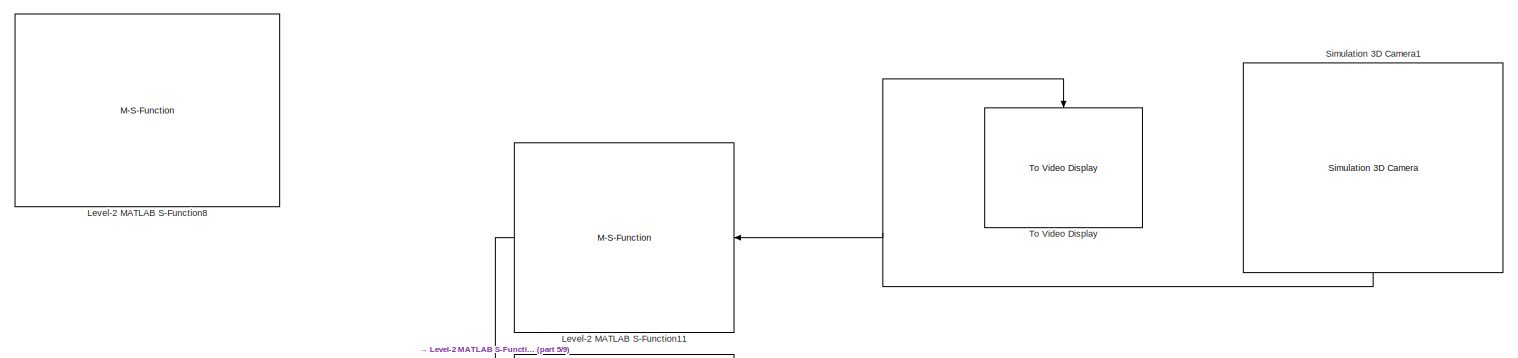
[diagram: root canvas - part 1/9, top center region]
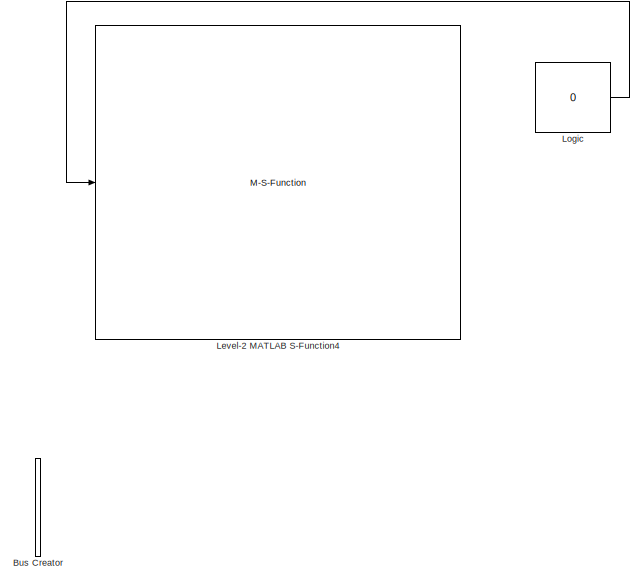
[diagram: root canvas - part 2/9, top left region]
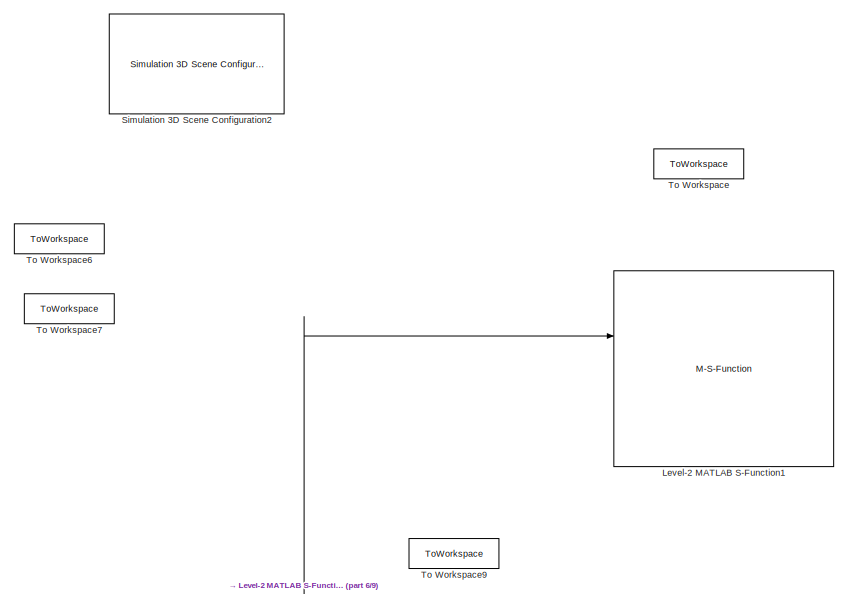
[diagram: root canvas - part 3/9, top center region]
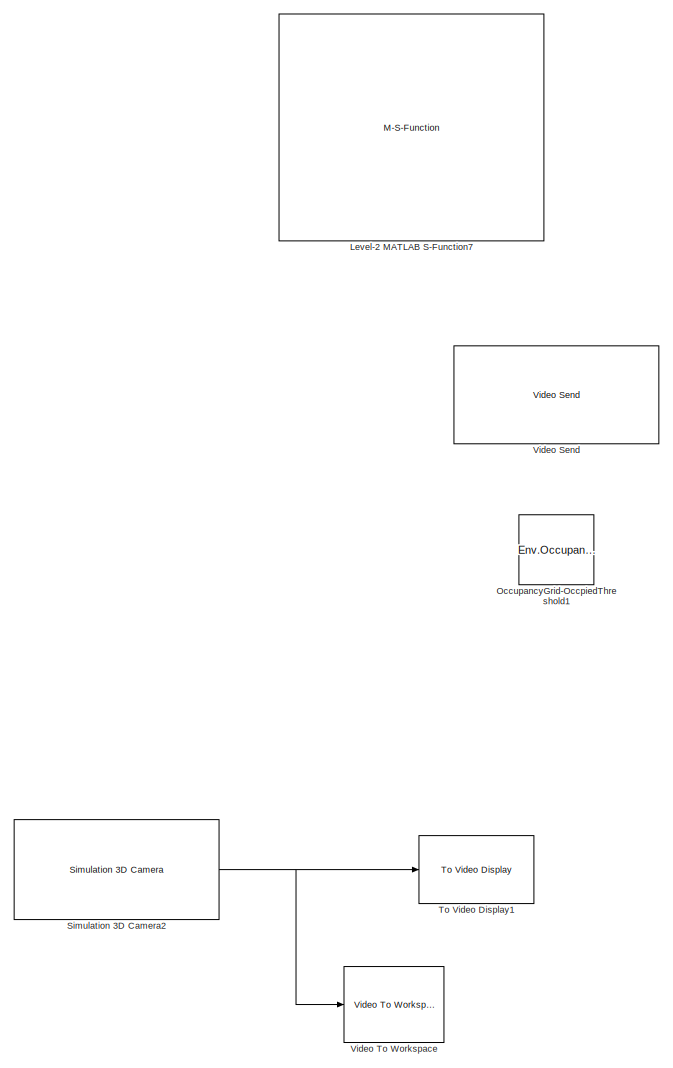
[diagram: root canvas - part 4/9, middle right region]
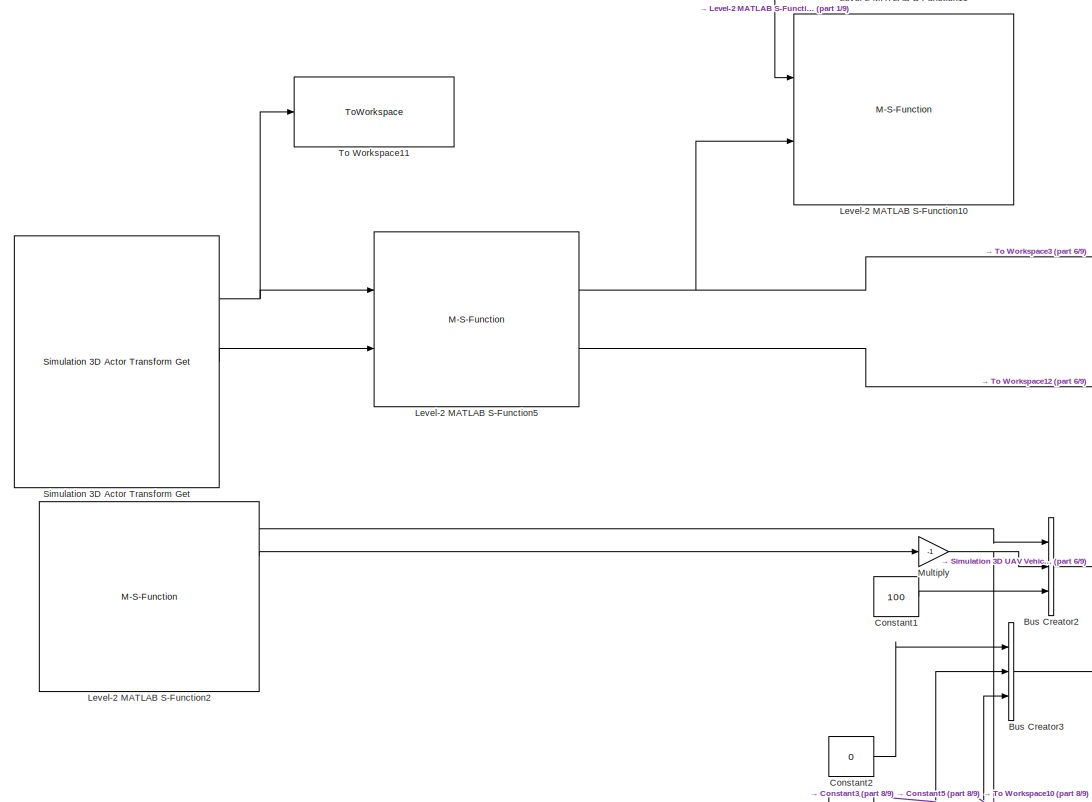
[diagram: root canvas - part 5/9, middle left region]
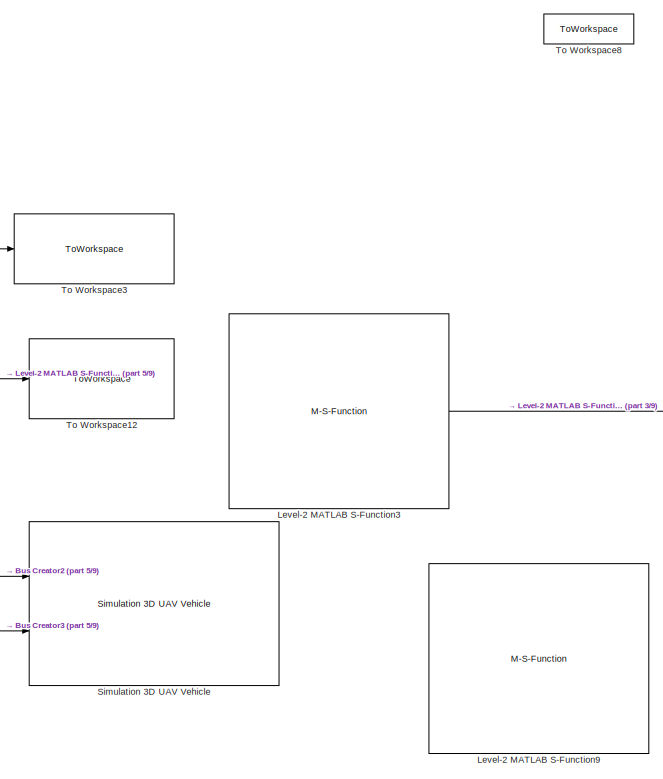
[diagram: root canvas - part 6/9, central region]
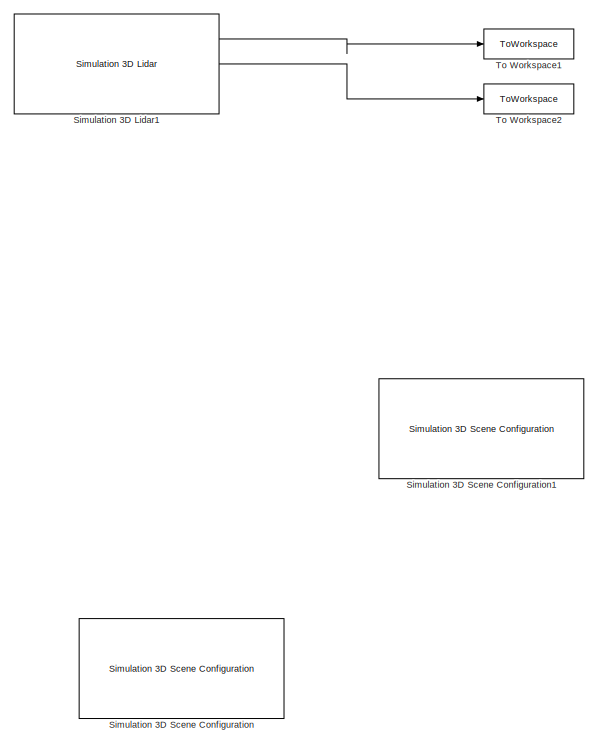
[diagram: root canvas - part 7/9, middle right region]
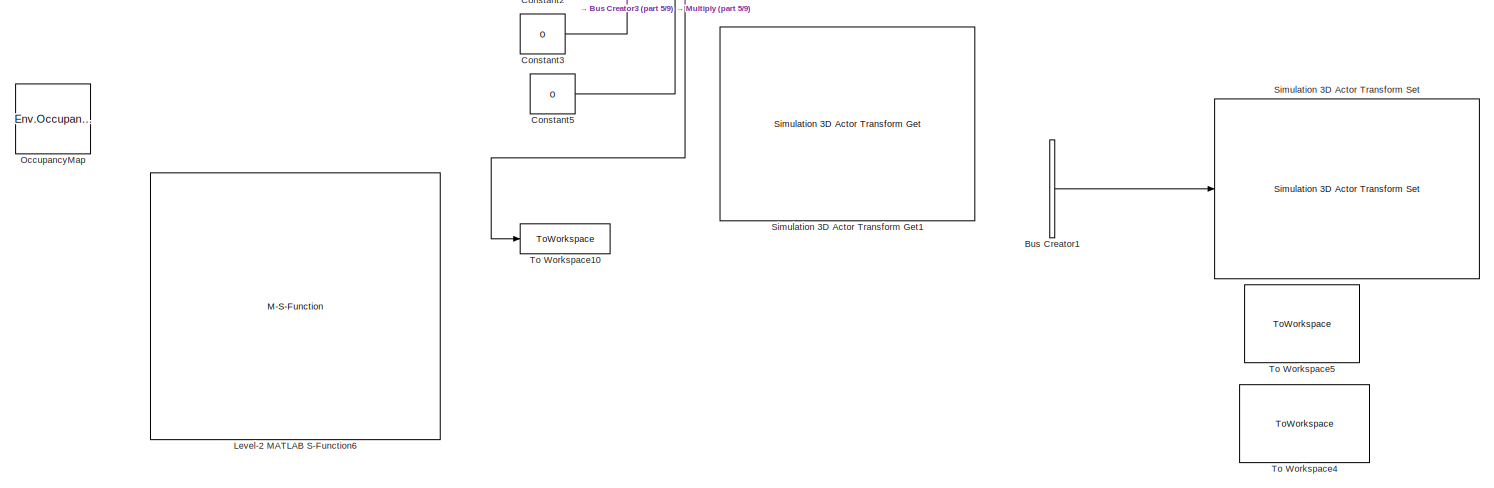
[diagram: root canvas - part 8/9, bottom center region]
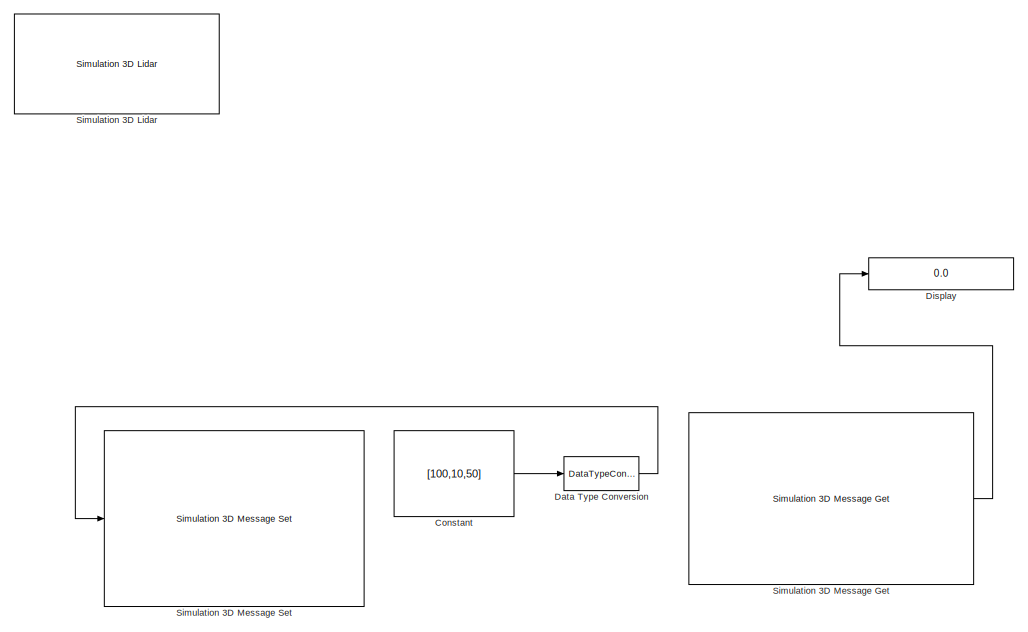
[diagram: root canvas - part 9/9, bottom right region]
MODEL slx_9650f5c3fcde
KIND model
CONFIG AbsTol = auto
CONFIG EnableMultiTasking = off
CONFIG FixedStep = auto
CONFIG MaxStep = auto
CONFIG MinStep = auto
CONFIG RelTol = 1e-3
CONFIG SampleTimeConstraint = Unconstrained
CONFIG SolverName = VariableStepAuto
CONFIG StartTime = 0.0
CONFIG StopTime = 10
BLOCK [BusCreator] Bus Creator
  Commented = on
  DisplayOption = bar
  InheritFromInputs = on
  Inputs = 3
  Ports = [3, 1]
BLOCK [BusCreator] Bus Creator1
  Commented = on
  DisplayOption = bar
  InheritFromInputs = on
  Inputs = 3
  Ports = [3, 1]
BLOCK [BusCreator] Bus Creator2
  DisplayOption = bar
  InheritFromInputs = on
  Inputs = 3
  Ports = [3, 1]
BLOCK [BusCreator] Bus Creator3
  DisplayOption = bar
  InheritFromInputs = on
  Inputs = 3
  Ports = [3, 1]
BLOCK [Constant] Constant
  Commented = on
  OutDataTypeStr = single
  Value = [100,10,50]
  VectorParams1D = off
BLOCK [Constant] Constant1
  Value = 100
BLOCK [Constant] Constant2
  Value = 0
BLOCK [Constant] Constant3
  Value = 0
BLOCK [Constant] Constant5
  Value = 0
BLOCK [DataTypeConversion] Data Type Conversion
  Commented = on
  OutDataTypeStr = single
  RndMeth = Floor
  SaturateOnIntegerOverflow = off
BLOCK [Display] Display
  Commented = on
  Decimation = 1
  Ports = [1]
BLOCK [M-S-Function] Level-2 MATLAB S-Function1
  Commented = on
  FunctionName = HazardMapDisplay
  Ports = [2]
  Priority = 1
BLOCK [M-S-Function] Level-2 MATLAB S-Function10
  FunctionName = ImageProcessingSubsystem
  Ports = [2, 1]
  Priority = 1
BLOCK [M-S-Function] Level-2 MATLAB S-Function11
  FunctionName = RGBToGray
  Ports = [1, 1]
  Priority = 1
BLOCK [M-S-Function] Level-2 MATLAB S-Function2
  FunctionName = PathPlanSubsystem
  Ports = [3, 6]
  Priority = 1
BLOCK [M-S-Function] Level-2 MATLAB S-Function3
  Commented = on
  FunctionName = UnrealToWorldTransform
  Ports = [2, 1]
  Priority = 1
BLOCK [M-S-Function] Level-2 MATLAB S-Function4
  Commented = on
  FunctionName = EnvConstants
  Ports = [1, 7]
  Priority = 1
BLOCK [M-S-Function] Level-2 MATLAB S-Function5
  FunctionName = CameraToWorldTransform
  Ports = [2, 2]
  Priority = 1
BLOCK [M-S-Function] Level-2 MATLAB S-Function6
  FunctionName = SimulationControl
  Ports = []
  Priority = 1
BLOCK [M-S-Function] Level-2 MATLAB S-Function7
  Commented = on
  FunctionName = DronePathPlanSubsystem
  Ports = [3, 6]
  Priority = 1
BLOCK [M-S-Function] Level-2 MATLAB S-Function8
  Commented = on
  FunctionName = SimulationControl
  Ports = []
  Priority = 1
BLOCK [M-S-Function] Level-2 MATLAB S-Function9
  Commented = on
  FunctionName = ImageProcessingSubsystem
  Ports = [3, 6]
  Priority = 1
BLOCK [Constant] Logic
  Commented = on
  OutDataTypeStr = double
  Value = 0
BLOCK [Gain] Multiply
  Gain = -1
BLOCK [Constant] OccupancyGrid-OccpiedThreshold1
  Commented = on
  Value = Env.OccupancyGrid.OccupiedThreshold
BLOCK [Constant] OccupancyMap
  Commented = on
  Value = Env.OccupancyMap
BLOCK [Reference] Simulation 3D Actor Transform Get  REF=sim3dlib/Simulation 3D Actor Transform Get
  Ports = [0, 3]
  Priority = 0
  SourceBlock = sim3dlib/Simulation 3D Actor Transform Get
  SourceProductBaseCode = VE,AE,DR,UV,VE
  SourceType = Simulation 3D Actor Transform Get
BLOCK [Reference] Simulation 3D Actor Transform Get1  REF=sim3dlib/Simulation 3D Actor Transform Get
  Commented = on
  Ports = [0, 3]
  Priority = 0
  SourceBlock = sim3dlib/Simulation 3D Actor Transform Get
  SourceProductBaseCode = VE,AE,DR,UV,VE
  SourceType = Simulation 3D Actor Transform Get
BLOCK [Reference] Simulation 3D Actor Transform Set  REF=sim3dlib/Simulation 3D Actor Transform Set
  Commented = on
  Ports = [3]
  Priority = 2
  SourceBlock = sim3dlib/Simulation 3D Actor Transform Set
  SourceProductBaseCode = VE,AE,DR,UV,VE
  SourceType = Simulation 3D Actor Transform Set
BLOCK [Reference] Simulation 3D Camera1  REF=sim3dcameralib/Simulation 3D Camera
  NameLocation = left
  Ports = [0, 1]
  Priority = 1
  SourceBlock = sim3dcameralib/Simulation 3D Camera
  SourceProductBaseCode = VE,AE,DR,UV,VE
  SourceType = Simulation 3D Camera
BLOCK [Reference] Simulation 3D Camera2  REF=sim3dcameralib/Simulation 3D Camera
  Commented = on
  Ports = [0, 1]
  Priority = 1
  SourceBlock = sim3dcameralib/Simulation 3D Camera
  SourceProductBaseCode = VE,AE,DR,UV,VE
  SourceType = Simulation 3D Camera
BLOCK [Reference] Simulation 3D Lidar  REF=sim3dphyssensorlib/Simulation 3D Lidar
  Commented = on
  Ports = [0, 1]
  Priority = 1
  SourceBlock = sim3dphyssensorlib/Simulation 3D Lidar
  SourceProductBaseCode = VE,AE,DR,UV,VE
  SourceType = Simulation 3D Lidar
BLOCK [Reference] Simulation 3D Lidar1  REF=sim3dphyssensorlib/Simulation 3D Lidar
  Commented = on
  Ports = [0, 3]
  Priority = 1
  SourceBlock = sim3dphyssensorlib/Simulation 3D Lidar
  SourceProductBaseCode = VE,AE,DR,UV,VE
  SourceType = Simulation 3D Lidar
BLOCK [Reference] Simulation 3D Message Get  REF=sim3dlib/Simulation 3D Message Get
  Commented = on
  Ports = [0, 1]
  Priority = 1
  SourceBlock = sim3dlib/Simulation 3D Message Get
  SourceProductBaseCode = VE,AE,DR,UV,VE
  SourceType = Simulation 3D Message Get
BLOCK [Reference] Simulation 3D Message Set  REF=sim3dlib/Simulation 3D Message Set
  Commented = on
  Ports = [1]
  Priority = -1
  SourceBlock = sim3dlib/Simulation 3D Message Set
  SourceProductBaseCode = VE,AE,DR,UV,VE
  SourceType = Simulation 3D Message Set
BLOCK [Reference] Simulation 3D Scene Configuration  REF=sim3dlib/Simulation 3D Scene Configuration
  Commented = on
  Ports = []
  Priority = 0
  SourceBlock = sim3dlib/Simulation 3D Scene Configuration
  SourceProductBaseCode = VE,AE,DR,UV,VE
  SourceType = Simulation 3D Scene Configuration
BLOCK [Reference] Simulation 3D Scene Configuration1  REF=sim3dlib/Simulation 3D Scene Configuration
  Commented = on
  Ports = []
  Priority = 0
  SourceBlock = sim3dlib/Simulation 3D Scene Configuration
  SourceProductBaseCode = VE,AE,DR,UV,VE
  SourceType = Simulation 3D Scene Configuration
BLOCK [Reference] Simulation 3D Scene Configuration2  REF=sim3dlib/Simulation 3D Scene Configuration
  Ports = []
  Priority = 1
  SourceBlock = sim3dlib/Simulation 3D Scene Configuration
  SourceProductBaseCode = VE,AE,DR,UV,VE
  SourceType = Simulation 3D Scene Configuration
BLOCK [Reference] Simulation 3D UAV Vehicle  REF=uavsim3dlib/Simulation 3D UAV Vehicle
  Ports = [2]
  Priority = 2
  SourceBlock = uavsim3dlib/Simulation 3D UAV Vehicle
  SourceProductBaseCode = UV
  SourceType = Simulation 3D UAV Vehicle
BLOCK [Reference] To Video Display  REF=visionsinks/To Video Display
  NameLocation = left
  Ports = [1]
  SourceBlock = visionsinks/To Video Display
  SourceProductBaseCode = VP
  SourceType = To Video Display
BLOCK [Reference] To Video Display1  REF=visionsinks/To Video Display
  Commented = on
  Ports = [1]
  SourceBlock = visionsinks/To Video Display
  SourceProductBaseCode = VP
  SourceType = To Video Display
BLOCK [ToWorkspace] To Workspace
  Commented = on
  FixptAsFi = on
  MaxDataPoints = inf
  Ports = [1]
  SampleTime = -1
  VariableName = state
BLOCK [ToWorkspace] To Workspace1
  Commented = on
  FixptAsFi = on
  MaxDataPoints = inf
  Ports = [1]
  SampleTime = -1
  SaveFormat = Timeseries
  VariableName = pCloud
BLOCK [ToWorkspace] To Workspace10
  FixptAsFi = on
  MaxDataPoints = inf
  Ports = [1]
  SampleTime = -1
  SaveFormat = Timeseries
  VariableName = Y
BLOCK [ToWorkspace] To Workspace11
  FixptAsFi = on
  MaxDataPoints = inf
  Ports = [1]
  SampleTime = -1
  SaveFormat = Timeseries
  VariableName = Translation
BLOCK [ToWorkspace] To Workspace12
  FixptAsFi = on
  MaxDataPoints = inf
  Ports = [1]
  SampleTime = -1
  SaveFormat = Timeseries
  VariableName = WorldCoordinates
BLOCK [ToWorkspace] To Workspace2
  Commented = on
  FixptAsFi = on
  MaxDataPoints = inf
  Ports = [1]
  SampleTime = -1
  SaveFormat = Timeseries
  VariableName = Location
BLOCK [ToWorkspace] To Workspace3
  FixptAsFi = on
  MaxDataPoints = inf
  Ports = [1]
  SampleTime = -1
  SaveFormat = Timeseries
  VariableName = UnrealCoordinates
BLOCK [ToWorkspace] To Workspace4
  Commented = on
  MaxDataPoints = inf
  Ports = [1]
  SampleTime = -1
  Save2DSignal = 2-D array (concatenate along first dimension)
  VariableName = Translation
BLOCK [ToWorkspace] To Workspace5
  Commented = on
  MaxDataPoints = inf
  Ports = [1]
  SampleTime = -1
  Save2DSignal = 2-D array (concatenate along first dimension)
  VariableName = Rotation
BLOCK [ToWorkspace] To Workspace6
  Commented = on
  FixptAsFi = on
  MaxDataPoints = inf
  Ports = [1]
  SampleTime = -1
  SaveFormat = Timeseries
  VariableName = camLocation
BLOCK [ToWorkspace] To Workspace7
  Commented = on
  FixptAsFi = on
  MaxDataPoints = inf
  Ports = [1]
  SampleTime = -1
  SaveFormat = Timeseries
  VariableName = camOrientation
BLOCK [ToWorkspace] To Workspace8
  Commented = on
  FixptAsFi = on
  MaxDataPoints = inf
  Ports = [1]
  SampleTime = -1
  SaveFormat = Timeseries
  VariableName = camDepth
BLOCK [ToWorkspace] To Workspace9
  Commented = on
  FixptAsFi = on
  MaxDataPoints = inf
  Ports = [1]
  SampleTime = -1
  VariableName = state1
BLOCK [Reference] Video Send  REF=uavsim3dlib/Video Send
  Commented = on
  Ports = [1]
  SourceBlock = uavsim3dlib/Video Send
  SourceProductBaseCode = UV
  SourceType = uav.sluav.internal.system.VideoSend
BLOCK [Reference] Video To Workspace  REF=visionsinks/Video To Workspace
  Commented = on
  Ports = [1]
  SourceBlock = visionsinks/Video To Workspace
  SourceProductBaseCode = VP
  SourceType = Video To Workspace
LINE Bus Creator1:1 -> Simulation 3D Actor Transform Set:2
LINE Bus Creator2:1 -> Simulation 3D UAV Vehicle:1
LINE Bus Creator3:1 -> Simulation 3D UAV Vehicle:2
LINE Constant1:1 -> Bus Creator2:3
LINE Constant2:1 -> Bus Creator3:1
LINE Constant3:1 -> Bus Creator3:2
LINE Constant5:1 -> Bus Creator3:3
LINE Constant:1 -> Data Type Conversion:1
LINE Data Type Conversion:1 -> Simulation 3D Message Set:1
LINE Level-2 MATLAB S-Function11:1 -> Level-2 MATLAB S-Function10:1
LINE Level-2 MATLAB S-Function2:1 -> Bus Creator2:1
LINE Level-2 MATLAB S-Function2:2 -> Multiply:1
LINE Level-2 MATLAB S-Function3:1 -> Level-2 MATLAB S-Function1:1
NET Level-2 MATLAB S-Function5:1 -> Level-2 MATLAB S-Function10:2, To Workspace3:1
LINE Level-2 MATLAB S-Function5:2 -> To Workspace12:1
LINE Logic:1 -> Level-2 MATLAB S-Function4:1
NET Multiply:1 -> Bus Creator2:2, To Workspace10:1
NET Simulation 3D Actor Transform Get:1 -> Level-2 MATLAB S-Function5:1, To Workspace11:1
LINE Simulation 3D Actor Transform Get:2 -> Level-2 MATLAB S-Function5:2
NET Simulation 3D Camera1:1 -> Level-2 MATLAB S-Function11:1, To Video Display:1
NET Simulation 3D Camera2:1 -> To Video Display1:1, Video To Workspace:1
LINE Simulation 3D Lidar1:1 -> To Workspace1:1
LINE Simulation 3D Lidar1:2 -> To Workspace2:1
LINE Simulation 3D Message Get:1 -> Display:1
note: NET lines group one-source signal fan-out (src -> all destinations, sorted); 1:1 wires keep LINE
